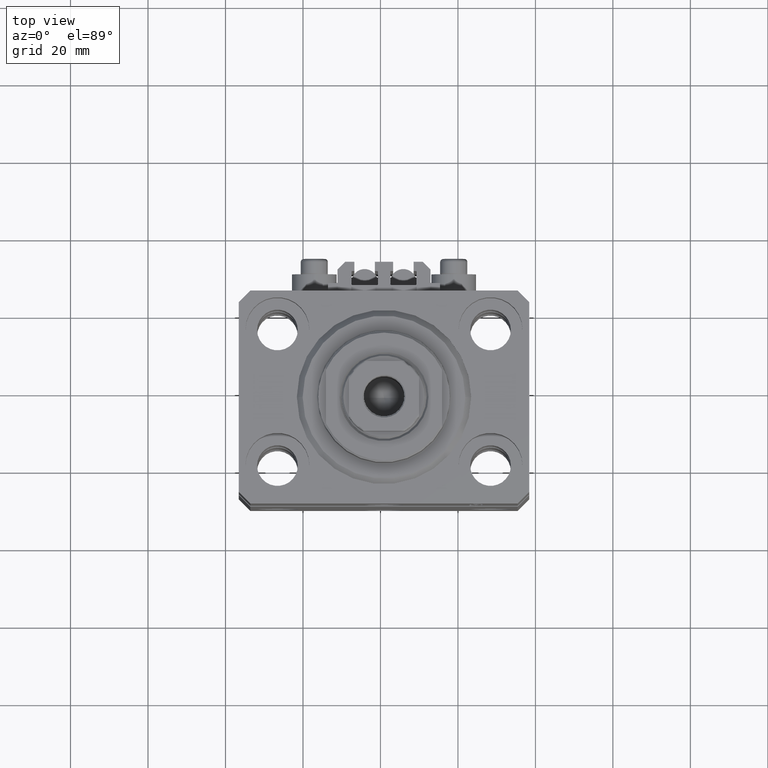
[diagram: clean part render]
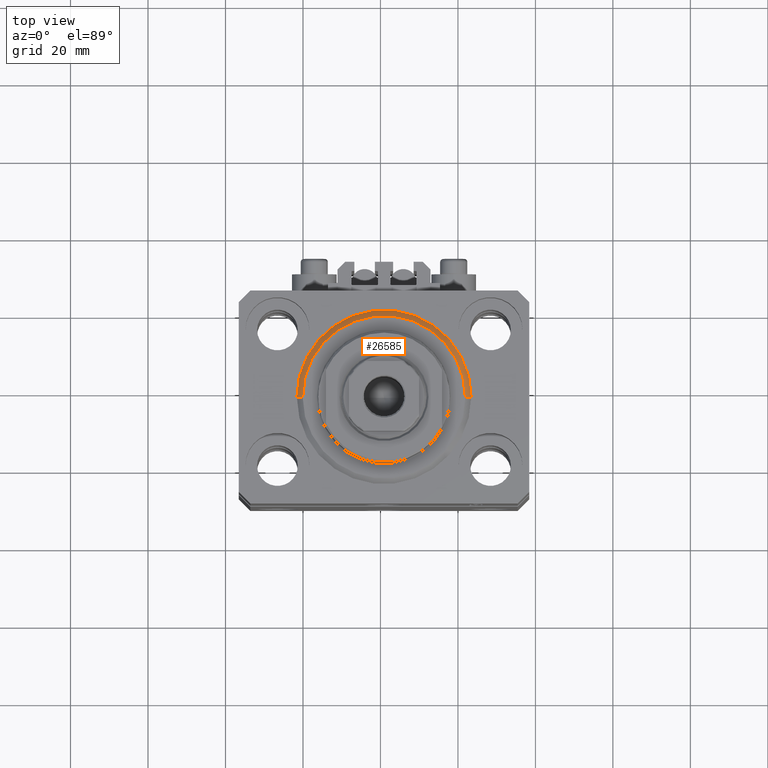
[diagram: same view with one face highlighted and labeled with its STEP entity id]
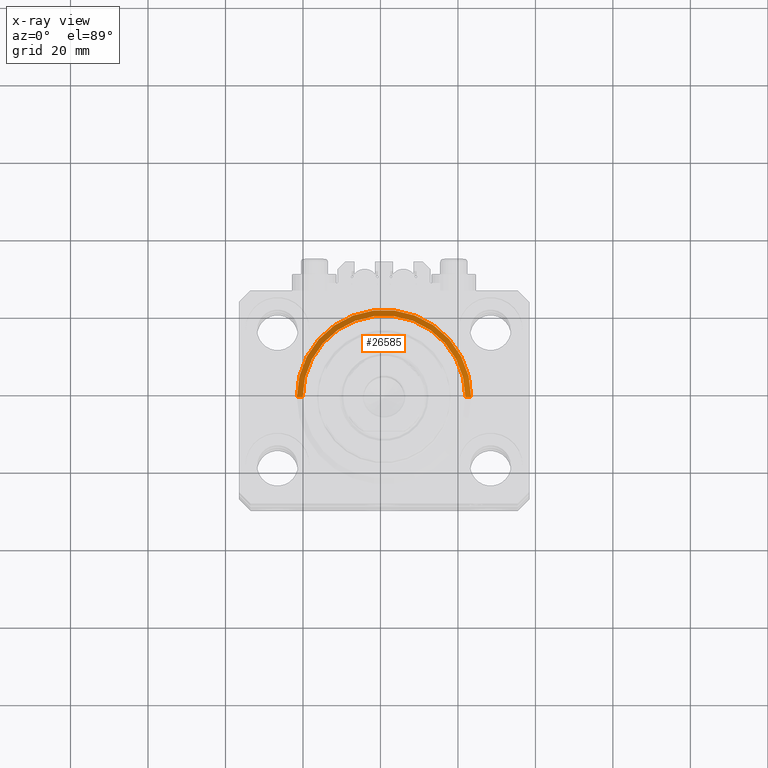
[diagram: x-ray of the same camera — body ghosted, the highlighted face saturated]
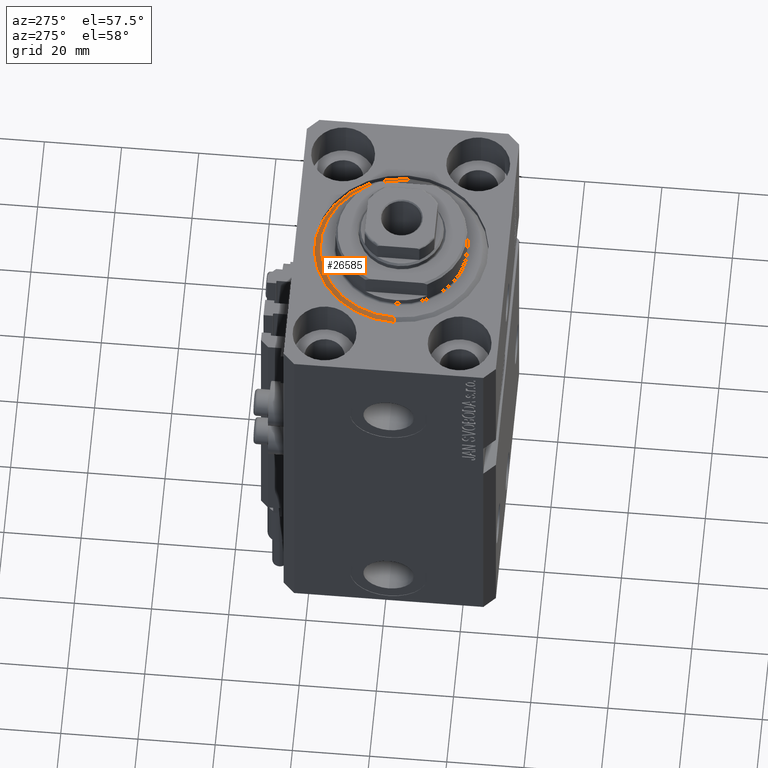
[diagram: same view with one face highlighted and labeled with its STEP entity id]
A machine part, top view. The second image highlights one B-rep face of the part: STEP entity #26585.
The next image is the same camera in x-ray: the body ghosted, the highlighted face saturated — about 0% of this face is hidden behind the body in this view.
A second angle (auxiliary view) of the same face is appended — the face is thin or edge-on in the first view.
In plain terms, the highlighted conical surface has half-angle 45 deg.
Its self-contained STEP definition (entity closure, byte-faithful):
#898 = CARTESIAN_POINT ( 'NONE',  ( 22.50000000000000355, 0.000000000000000000, 1.500000000000001332 ) ) ;
#2577 = DIRECTION ( 'NONE',  ( -0.000000000000000000, -0.000000000000000000, 1.000000000000000000 ) ) ;
#5557 = AXIS2_PLACEMENT_3D ( 'NONE', #40284, #7417, #30714 ) ;
#7417 = DIRECTION ( 'NONE',  ( -0.000000000000000000, -0.000000000000000000, 1.000000000000000000 ) ) ;
#10547 = CARTESIAN_POINT ( 'NONE',  ( -20.99999999999998934, 2.663606788145492628E-15, 0.000000000000000000 ) ) ;
#10866 = CARTESIAN_POINT ( 'NONE',  ( 0.000000000000000000, 0.000000000000000000, 1.500000000000001332 ) ) ;
#10998 = CIRCLE ( 'NONE', #5557, 22.50000000000000355 ) ;
#11385 = DIRECTION ( 'NONE',  ( 0.7071067811865500152, 0.000000000000000000, 0.7071067811865451302 ) ) ;
#12303 = ORIENTED_EDGE ( 'NONE', *, *, #26278, .F. ) ;
#12696 = ORIENTED_EDGE ( 'NONE', *, *, #42399, .F. ) ;
#12854 = CONICAL_SURFACE ( 'NONE', #25301, 22.50000000000000355, 0.7853981633974517207 ) ;
#14292 = VERTEX_POINT ( 'NONE', #10547 ) ;
#14427 = CIRCLE ( 'NONE', #27642, 20.99999999999998934 ) ;
#15740 = VECTOR ( 'NONE', #11385, 1000.000000000000114 ) ;
#15981 = ORIENTED_EDGE ( 'NONE', *, *, #45905, .F. ) ;
#18162 = FACE_OUTER_BOUND ( 'NONE', #43086, .T. ) ;
#21525 = VERTEX_POINT ( 'NONE', #33910 ) ;
#25036 = DIRECTION ( 'NONE',  ( -0.000000000000000000, -0.000000000000000000, -1.000000000000000000 ) ) ;
#25301 = AXIS2_PLACEMENT_3D ( 'NONE', #10866, #2577, #32794 ) ;
#26278 = EDGE_CURVE ( 'NONE', #14292, #32504, #14427, .T. ) ;
#26585 = ADVANCED_FACE ( 'NONE', ( #18162 ), #12854, .T. ) ;
#27642 = AXIS2_PLACEMENT_3D ( 'NONE', #39895, #25036, #28456 ) ;
#28456 = DIRECTION ( 'NONE',  ( 1.000000000000000000, 0.000000000000000000, 0.000000000000000000 ) ) ;
#29348 = ORIENTED_EDGE ( 'NONE', *, *, #33278, .T. ) ;
#30714 = DIRECTION ( 'NONE',  ( 1.000000000000000000, 0.000000000000000000, 0.000000000000000000 ) ) ;
#32504 = VERTEX_POINT ( 'NONE', #35057 ) ;
#32794 = DIRECTION ( 'NONE',  ( 1.000000000000000000, 0.000000000000000000, 0.000000000000000000 ) ) ;
#33278 = EDGE_CURVE ( 'NONE', #14292, #39051, #42127, .T. ) ;
#33647 = CARTESIAN_POINT ( 'NONE',  ( -22.50000000000000355, 2.755455298081545172E-15, 1.500000000000001332 ) ) ;
#33910 = CARTESIAN_POINT ( 'NONE',  ( 22.50000000000000355, 2.755455298081545172E-15, 1.500000000000001332 ) ) ;
#35057 = CARTESIAN_POINT ( 'NONE',  ( 20.99999999999998934, 0.000000000000000000, 0.000000000000000000 ) ) ;
#37540 = DIRECTION ( 'NONE',  ( -0.7071067811865500152, 8.659560562354963673E-17, 0.7071067811865451302 ) ) ;
#39051 = VERTEX_POINT ( 'NONE', #41417 ) ;
#39895 = CARTESIAN_POINT ( 'NONE',  ( 0.000000000000000000, 0.000000000000000000, 0.000000000000000000 ) ) ;
#40284 = CARTESIAN_POINT ( 'NONE',  ( 0.000000000000000000, 0.000000000000000000, 1.500000000000001332 ) ) ;
#41417 = CARTESIAN_POINT ( 'NONE',  ( -22.50000000000000355, 0.000000000000000000, 1.500000000000001332 ) ) ;
#41812 = LINE ( 'NONE', #898, #15740 ) ;
#42127 = LINE ( 'NONE', #33647, #48123 ) ;
#42399 = EDGE_CURVE ( 'NONE', #21525, #39051, #10998, .T. ) ;
#43086 = EDGE_LOOP ( 'NONE', ( #12303, #29348, #12696, #15981 ) ) ;
#45905 = EDGE_CURVE ( 'NONE', #32504, #21525, #41812, .T. ) ;
#48123 = VECTOR ( 'NONE', #37540, 1000.000000000000114 ) ;